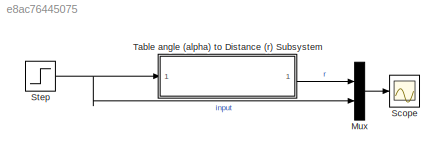
MODEL slx_e8ac76445075
KIND model
CONFIG AbsTol = auto
CONFIG EnableMultiTasking = off
CONFIG FixedStep = 1e-3
CONFIG MaxStep = auto
CONFIG MinStep = auto
CONFIG RelTol = 1e-3
CONFIG SampleTimeConstraint = Unconstrained
CONFIG SolverName = ode4
CONFIG StartTime = 0.0
CONFIG StopTime = 30
BLOCK [Mux] Mux
  DisplayOption = bar
  Inputs = 2
  Ports = [2, 1]
BLOCK [Scope] Scope
  Floating = off
  NumInputPorts = 1
  Ports = [1]
  ScopeSpecificationString = Simulink.scopes.TimeScopeBlockCfg('CurrentConfiguration', extmgr.ConfigurationSet(extmgr.Configuration('Core','General UI',true),extmgr.Configuration('Core','Source UI',true),extmgr.Configuration('Sources','WiredSimulink',true),extmgr.Configuration('Visuals','Time Domain',true,'SerializedDisplays',{struct('MinYLimReal','-0.01068','MaxYLimReal','0.09614','YLabelReal','','MinYLimMag','0.00000','MaxY...<+1353ch>
BLOCK [Step] Step
  After = 0.001
  SampleTime = 0
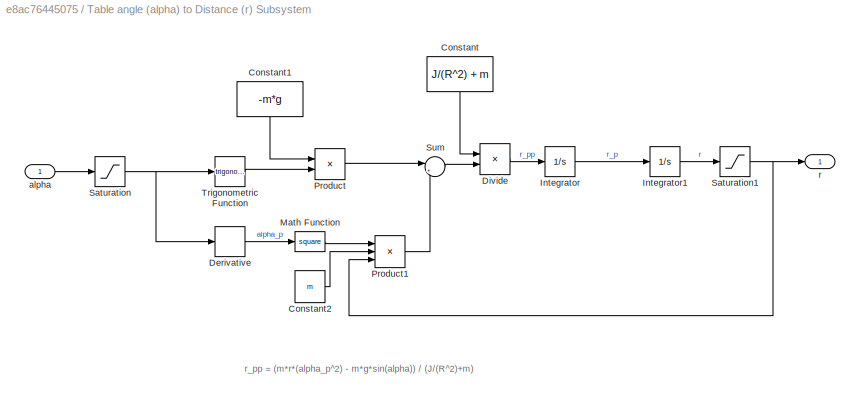
BLOCK [SubSystem] Table angle (alpha) to Distance (r) Subsystem
  NameLocation = top
  Ports = [1, 1]
  RequestExecContextInheritance = off
BLOCK [Constant] Table angle (alpha) to Distance (r) Subsystem/Constant
  NameLocation = left
  Value = J/(R^2) + m
BLOCK [Constant] Table angle (alpha) to Distance (r) Subsystem/Constant1
  NameLocation = left
  Value = -m*g
BLOCK [Constant] Table angle (alpha) to Distance (r) Subsystem/Constant2
  Value = m
BLOCK [Derivative] Table angle (alpha) to Distance (r) Subsystem/Derivative
BLOCK [Product] Table angle (alpha) to Distance (r) Subsystem/Divide
  Inputs = /*
  Ports = [2, 1]
BLOCK [Integrator] Table angle (alpha) to Distance (r) Subsystem/Integrator
  Ports = [1, 1]
BLOCK [Integrator] Table angle (alpha) to Distance (r) Subsystem/Integrator1
  InitialCondition = 0.08
  Ports = [1, 1]
BLOCK [Math] Table angle (alpha) to Distance (r) Subsystem/Math Function
  Operator = square
  Ports = [1, 1]
BLOCK [Product] Table angle (alpha) to Distance (r) Subsystem/Product
  Ports = [2, 1]
BLOCK [Product] Table angle (alpha) to Distance (r) Subsystem/Product1
  Inputs = 3
  Ports = [3, 1]
BLOCK [Saturate] Table angle (alpha) to Distance (r) Subsystem/Saturation
  LowerLimit = -0.2
  UpperLimit = 0.263
BLOCK [Saturate] Table angle (alpha) to Distance (r) Subsystem/Saturation1
  LowerLimit = 0.04
  UpperLimit = 0.3
BLOCK [Sum] Table angle (alpha) to Distance (r) Subsystem/Sum
  Inputs = |++
  Ports = [2, 1]
BLOCK [Trigonometry] Table angle (alpha) to Distance (r) Subsystem/Trigonometric Function
  Ports = [1, 1]
BLOCK [Inport] Table angle (alpha) to Distance (r) Subsystem/alpha
BLOCK [Outport] Table angle (alpha) to Distance (r) Subsystem/r
ANNOTATION Table angle (alpha) to Distance (r) Subsystem: r_pp = (m*r*(alpha_p^2) - m*g*sin(alpha)) / (J/(R^2)+m)
LINE Mux:1 -> Scope:1
NET Step:1 -> Mux:2, Table angle (alpha) to Distance (r) Subsystem:1
LINE Table angle (alpha) to Distance (r) Subsystem/Constant1:1 -> Table angle (alpha) to Distance (r) Subsystem/Product:1
LINE Table angle (alpha) to Distance (r) Subsystem/Constant2:1 -> Table angle (alpha) to Distance (r) Subsystem/Product1:2
LINE Table angle (alpha) to Distance (r) Subsystem/Constant:1 -> Table angle (alpha) to Distance (r) Subsystem/Divide:1
LINE Table angle (alpha) to Distance (r) Subsystem/Derivative:1 -> Table angle (alpha) to Distance (r) Subsystem/Math Function:1
LINE Table angle (alpha) to Distance (r) Subsystem/Divide:1 -> Table angle (alpha) to Distance (r) Subsystem/Integrator:1
LINE Table angle (alpha) to Distance (r) Subsystem/Integrator1:1 -> Table angle (alpha) to Distance (r) Subsystem/Saturation1:1
LINE Table angle (alpha) to Distance (r) Subsystem/Integrator:1 -> Table angle (alpha) to Distance (r) Subsystem/Integrator1:1
LINE Table angle (alpha) to Distance (r) Subsystem/Math Function:1 -> Table angle (alpha) to Distance (r) Subsystem/Product1:1
LINE Table angle (alpha) to Distance (r) Subsystem/Product1:1 -> Table angle (alpha) to Distance (r) Subsystem/Sum:2
LINE Table angle (alpha) to Distance (r) Subsystem/Product:1 -> Table angle (alpha) to Distance (r) Subsystem/Sum:1
NET Table angle (alpha) to Distance (r) Subsystem/Saturation1:1 -> Table angle (alpha) to Distance (r) Subsystem/Product1:3, Table angle (alpha) to Distance (r) Subsystem/r:1
NET Table angle (alpha) to Distance (r) Subsystem/Saturation:1 -> Table angle (alpha) to Distance (r) Subsystem/Derivative:1, Table angle (alpha) to Distance (r) Subsystem/Trigonometric Function:1
LINE Table angle (alpha) to Distance (r) Subsystem/Sum:1 -> Table angle (alpha) to Distance (r) Subsystem/Divide:2
LINE Table angle (alpha) to Distance (r) Subsystem/Trigonometric Function:1 -> Table angle (alpha) to Distance (r) Subsystem/Product:2
LINE Table angle (alpha) to Distance (r) Subsystem/alpha:1 -> Table angle (alpha) to Distance (r) Subsystem/Saturation:1
LINE Table angle (alpha) to Distance (r) Subsystem:1 -> Mux:1
note: NET lines group one-source signal fan-out (src -> all destinations, sorted); 1:1 wires keep LINE
